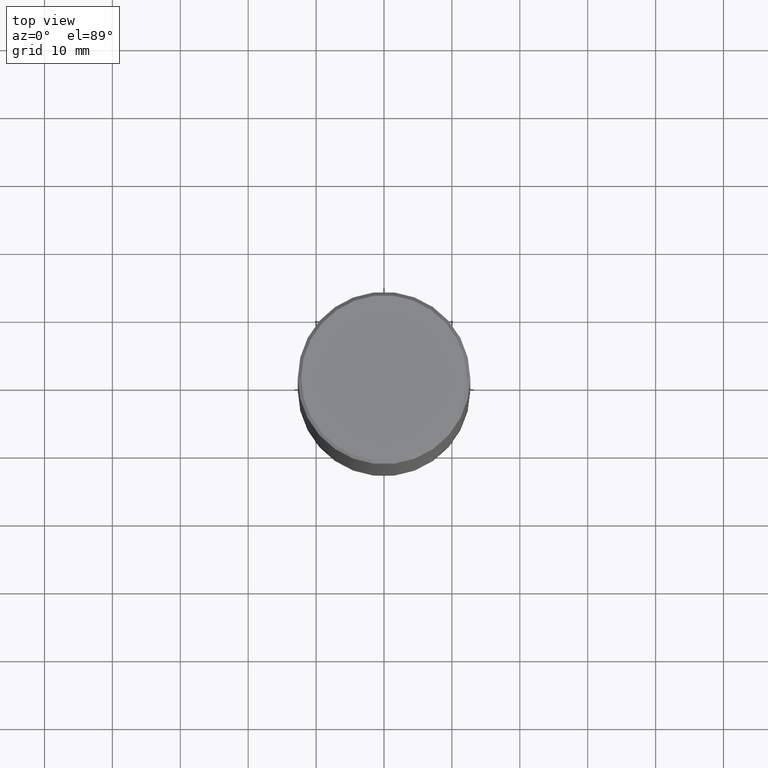
[diagram: clean part render]
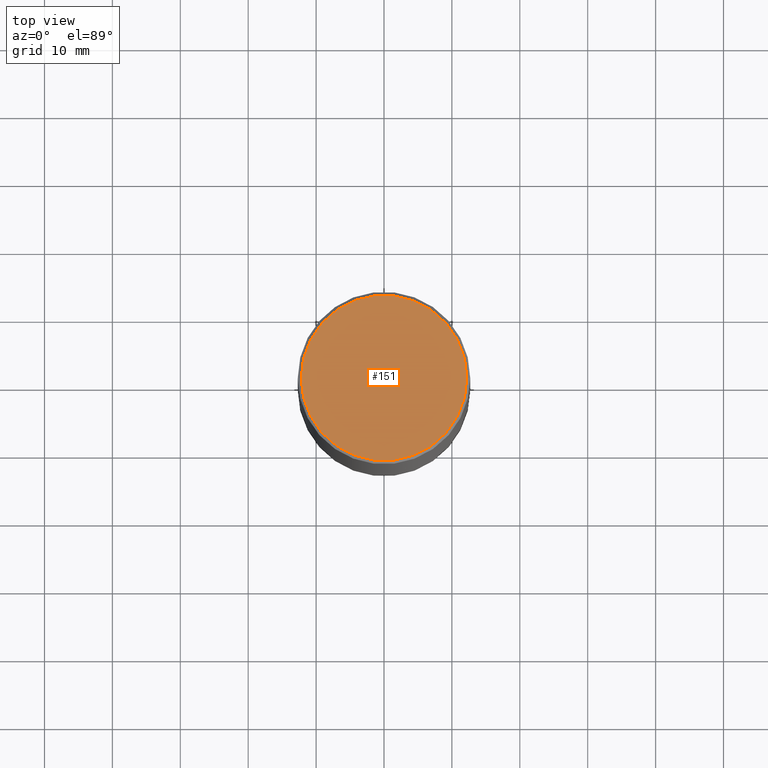
[diagram: same view with one face highlighted and labeled with its STEP entity id]
A machine part, top view. The second image highlights one B-rep face of the part: STEP entity #151.
In plain terms, the highlighted planar face has unit normal (0, -0, -1).
Its self-contained STEP definition (entity closure, byte-faithful):
#5 = CIRCLE ( 'NONE', #135, 0.4799999999999996492 ) ;
#8 = CARTESIAN_POINT ( 'NONE',  ( -3.131554243005659264E-46, 4.471029511141341874E-32, 1.280553747030123384E-17 ) ) ;
#30 = DIRECTION ( 'NONE',  ( 1.000000000000000000, -6.982962677686267499E-15, 4.876036955247132767E-29 ) ) ;
#59 = CARTESIAN_POINT ( 'NONE',  ( 3.351822085289405181E-15, 0.4799999999999996492, -1.669508273909558064E-15 ) ) ;
#60 = CARTESIAN_POINT ( 'NONE',  ( 0.4799999999999996492, -3.396558832296480127E-15, 1.280553747032483033E-17 ) ) ;
#77 = EDGE_CURVE ( 'NONE', #248, #226, #188, .T. ) ;
#92 = AXIS2_PLACEMENT_3D ( 'NONE', #290, #115, #30 ) ;
#101 = ORIENTED_EDGE ( 'NONE', *, *, #77, .T. ) ;
#113 = EDGE_CURVE ( 'NONE', #226, #248, #5, .T. ) ;
#115 = DIRECTION ( 'NONE',  ( -2.445468806185136597E-29, 3.491481338843145583E-15, 1.000000000000000000 ) ) ;
#135 = AXIS2_PLACEMENT_3D ( 'NONE', #8, #201, #320 ) ;
#150 = AXIS2_PLACEMENT_3D ( 'NONE', #59, #234, #261 ) ;
#151 = ADVANCED_FACE ( 'NONE', ( #208 ), #228, .F. ) ;
#188 = CIRCLE ( 'NONE', #92, 0.4799999999999996492 ) ;
#201 = DIRECTION ( 'NONE',  ( -2.445468806185136597E-29, 3.491481338843145583E-15, 1.000000000000000000 ) ) ;
#208 = FACE_OUTER_BOUND ( 'NONE', #217, .T. ) ;
#217 = EDGE_LOOP ( 'NONE', ( #309, #101 ) ) ;
#226 = VERTEX_POINT ( 'NONE', #299 ) ;
#228 = PLANE ( 'NONE',  #150 ) ;
#234 = DIRECTION ( 'NONE',  ( 2.438088387897960049E-29, -3.491481338843145188E-15, -1.000000000000000000 ) ) ;
#248 = VERTEX_POINT ( 'NONE', #60 ) ;
#261 = DIRECTION ( 'NONE',  ( -1.000000000000000000, 6.982962677686265922E-15, -4.876176775795935793E-29 ) ) ;
#290 = CARTESIAN_POINT ( 'NONE',  ( -3.131554243005659264E-46, 4.471029511141341874E-32, 1.280553747030123384E-17 ) ) ;
#299 = CARTESIAN_POINT ( 'NONE',  ( -0.4799999999999996492, 3.386736898677836830E-15, 1.280553747027767124E-17 ) ) ;
#309 = ORIENTED_EDGE ( 'NONE', *, *, #113, .T. ) ;
#320 = DIRECTION ( 'NONE',  ( 1.000000000000000000, -6.982962677686267499E-15, 4.876036955247132767E-29 ) ) ;